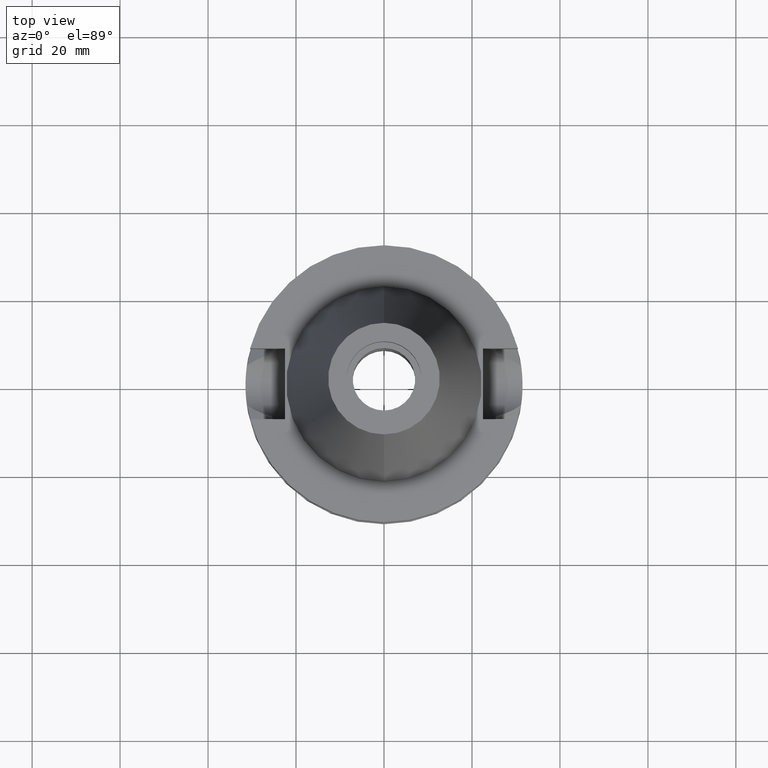
[diagram: clean part render]
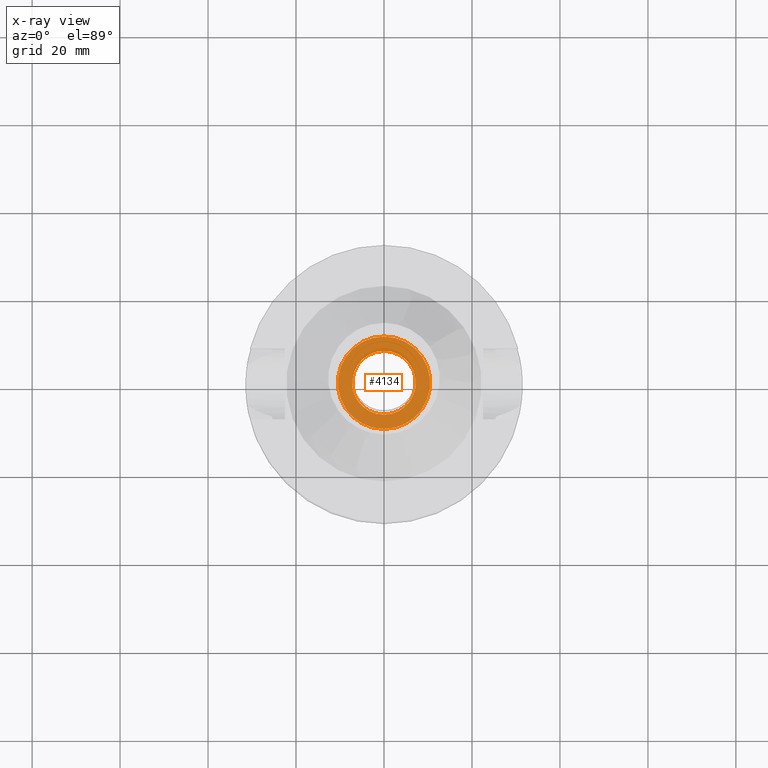
[diagram: x-ray — body ghosted, one internal face saturated and labeled with its STEP entity id]
A machine part, top view, then the same camera in x-ray: the body is ghosted and one INTERNAL B-rep face — a face not visible from any outside direction — is saturated and labeled: STEP entity #4134.
In plain terms, the highlighted planar face has unit normal (0, 0, -1).
Its self-contained STEP definition (entity closure, byte-faithful):
#2112=CARTESIAN_POINT('',(0.E0,2.111536011090E-14,1.E1));
#2113=DIRECTION('',(0.E0,0.E0,1.E0));
#2114=DIRECTION('',(0.E0,-1.E0,0.E0));
#2115=AXIS2_PLACEMENT_3D('',#2112,#2113,#2114);
#2120=CARTESIAN_POINT('',(0.E0,2.111536011090E-14,1.E1));
#2121=DIRECTION('',(0.E0,0.E0,1.E0));
#2122=DIRECTION('',(0.E0,1.E0,0.E0));
#2123=AXIS2_PLACEMENT_3D('',#2120,#2121,#2122);
#2128=CARTESIAN_POINT('',(0.E0,2.111536011090E-14,1.E1));
#2129=DIRECTION('',(0.E0,0.E0,-1.E0));
#2130=DIRECTION('',(0.E0,-1.E0,0.E0));
#2131=AXIS2_PLACEMENT_3D('',#2128,#2129,#2130);
#2136=CARTESIAN_POINT('',(0.E0,2.111536011090E-14,1.E1));
#2137=DIRECTION('',(0.E0,0.E0,-1.E0));
#2138=DIRECTION('',(0.E0,1.E0,0.E0));
#2139=AXIS2_PLACEMENT_3D('',#2136,#2137,#2138);
#2374=CARTESIAN_POINT('',(0.E0,7.25E0,1.E1));
#2375=VERTEX_POINT('',#2374);
#2376=CARTESIAN_POINT('',(0.E0,-7.25E0,1.E1));
#2377=VERTEX_POINT('',#2376);
#2378=CARTESIAN_POINT('',(0.E0,-1.05E1,1.E1));
#2379=CARTESIAN_POINT('',(0.E0,1.05E1,1.E1));
#2380=VERTEX_POINT('',#2378);
#2381=VERTEX_POINT('',#2379);
#4119=CARTESIAN_POINT('',(0.E0,1.347111479062E-14,1.E1));
#4120=DIRECTION('',(0.E0,0.E0,-1.E0));
#4121=DIRECTION('',(0.E0,-1.E0,0.E0));
#4122=AXIS2_PLACEMENT_3D('',#4119,#4120,#4121);
#4123=PLANE('',#4122);
#4124=ORIENTED_EDGE('',*,*,#4112,.T.);
#4125=ORIENTED_EDGE('',*,*,#4101,.T.);
#4126=EDGE_LOOP('',(#4124,#4125));
#4127=FACE_OUTER_BOUND('',#4126,.F.);
#4129=ORIENTED_EDGE('',*,*,#4128,.T.);
#4131=ORIENTED_EDGE('',*,*,#4130,.T.);
#4132=EDGE_LOOP('',(#4129,#4131));
#4133=FACE_BOUND('',#4132,.F.);
#2116=CIRCLE('',#2115,1.05E1);
#2124=CIRCLE('',#2123,1.05E1);
#2132=CIRCLE('',#2131,7.25E0);
#2140=CIRCLE('',#2139,7.25E0);
#4101=EDGE_CURVE('',#2381,#2380,#2124,.T.);
#4112=EDGE_CURVE('',#2380,#2381,#2116,.T.);
#4128=EDGE_CURVE('',#2377,#2375,#2132,.T.);
#4130=EDGE_CURVE('',#2375,#2377,#2140,.T.);
#4134=ADVANCED_FACE('',(#4127,#4133),#4123,.T.);